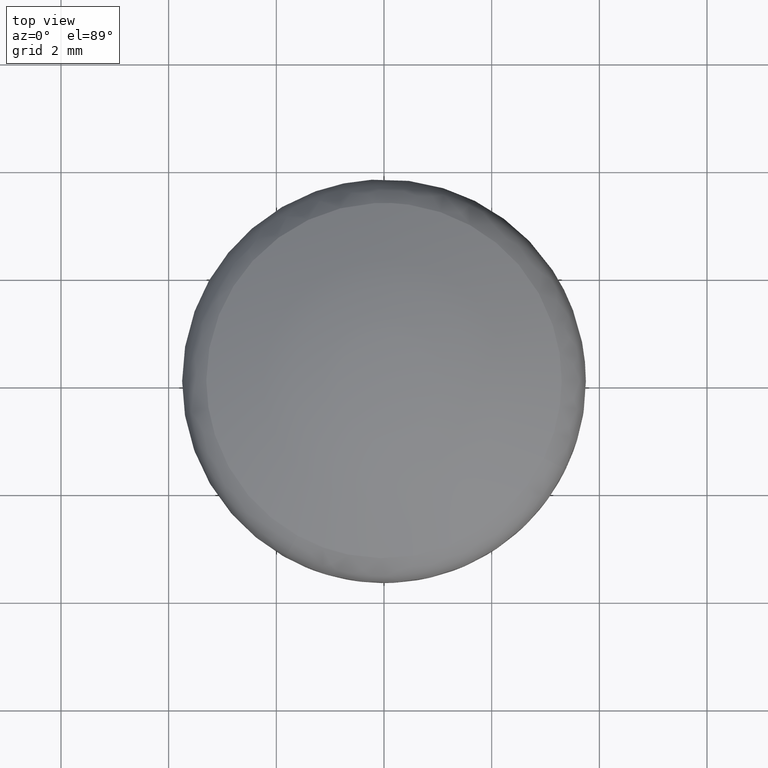
[diagram: clean part render]
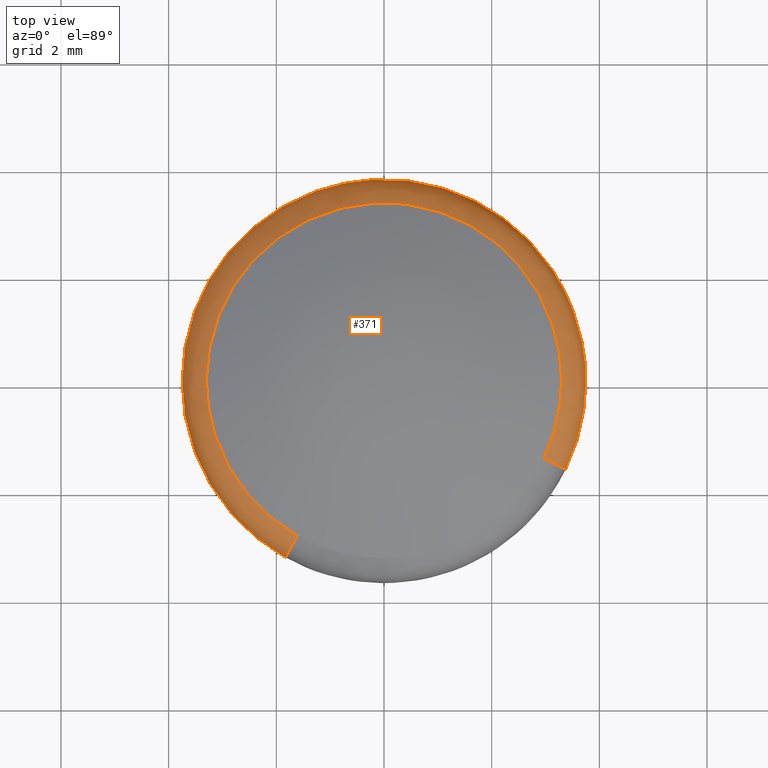
[diagram: same view with one face highlighted and labeled with its STEP entity id]
A machine part, top view. The second image highlights one B-rep face of the part: STEP entity #371.
In plain terms, the highlighted face is a freeform B-spline surface patch.
Its self-contained STEP definition (entity closure, byte-faithful):
#70=CARTESIAN_POINT('',(3.510538469086697,1.318567274378674,0.019141930186875));
#71=VERTEX_POINT('',#70);
#72=CARTESIAN_POINT('',(3.750000000000000,0.0,0.019141930186889));
#73=VERTEX_POINT('',#72);
#74=CARTESIAN_POINT('',(3.510538469086697,1.318567274378674,0.019141930186875));
#75=CARTESIAN_POINT('',(3.750000000000000,0.681027554755463,0.019141930186889));
#76=CARTESIAN_POINT('',(3.750000000000000,0.0,0.019141930186889));
#84=(BOUNDED_CURVE()B_SPLINE_CURVE(2,(#74,#75,#76),.UNSPECIFIED.,.F.,.U.)B_SPLINE_CURVE_WITH_KNOTS((3,3),(0.440284182560188,0.500000000000000),.UNSPECIFIED.)CURVE()GEOMETRIC_REPRESENTATION_ITEM()RATIONAL_B_SPLINE_CURVE((0.893499568906404,0.930038568063908,1.0))REPRESENTATION_ITEM(''));
#85=EDGE_CURVE('',#71,#73,#84,.T.);
#87=CARTESIAN_POINT('',(3.372769693373826,-1.639184124941127,0.019141930189544));
#88=VERTEX_POINT('',#87);
#89=CARTESIAN_POINT('',(3.750000000000000,0.0,0.019141930186889));
#90=CARTESIAN_POINT('',(3.749999999999999,-0.862998627380589,0.019141930186889));
#91=CARTESIAN_POINT('',(3.372769693373826,-1.639184124941127,0.019141930189544));
#99=(BOUNDED_CURVE()B_SPLINE_CURVE(2,(#89,#90,#91),.UNSPECIFIED.,.F.,.U.)B_SPLINE_CURVE_WITH_KNOTS((3,3),(0.500000000000000,0.574283295446778),.UNSPECIFIED.)CURVE()GEOMETRIC_REPRESENTATION_ITEM()RATIONAL_B_SPLINE_CURVE((1.0,0.912971705970091,0.877661399761403))REPRESENTATION_ITEM(''));
#100=EDGE_CURVE('',#73,#88,#99,.T.);
#102=CARTESIAN_POINT('',(-1.829397518922568,-3.273500376929860,0.019141930189478));
#103=VERTEX_POINT('',#102);
#119=CARTESIAN_POINT('',(-3.750000000000000,0.0,0.019141930186889));
#120=VERTEX_POINT('',#119);
#121=CARTESIAN_POINT('',(-1.829397518922568,-3.273500376929860,0.019141930189478));
#122=CARTESIAN_POINT('',(-3.750000000000000,-2.200170604774645,0.019141930186889));
#123=CARTESIAN_POINT('',(-3.750000000000000,0.0,0.019141930186889));
#131=(BOUNDED_CURVE()B_SPLINE_CURVE(2,(#121,#122,#123),.UNSPECIFIED.,.F.,.U.)B_SPLINE_CURVE_WITH_KNOTS((3,3),(0.833121442956414,1.0),.UNSPECIFIED.)CURVE()GEOMETRIC_REPRESENTATION_ITEM()RATIONAL_B_SPLINE_CURVE((0.869991153567505,0.804489609106238,1.0))REPRESENTATION_ITEM(''));
#132=EDGE_CURVE('',#103,#120,#131,.T.);
#134=CARTESIAN_POINT('',(-0.228928960107141,3.743005681429677,0.019141930187192));
#135=VERTEX_POINT('',#134);
#136=CARTESIAN_POINT('',(-3.750000000000000,0.0,0.019141930186889));
#137=CARTESIAN_POINT('',(-3.749999999999999,3.527650643199158,0.019141930186889));
#138=CARTESIAN_POINT('',(-0.228928960107141,3.743005681429677,0.019141930187192));
#146=(BOUNDED_CURVE()B_SPLINE_CURVE(2,(#136,#137,#138),.UNSPECIFIED.,.F.,.U.)B_SPLINE_CURVE_WITH_KNOTS((3,3),(0.0,0.239333103448416),.UNSPECIFIED.)CURVE()GEOMETRIC_REPRESENTATION_ITEM()RATIONAL_B_SPLINE_CURVE((1.0,0.719603827849522,0.976072344305685))REPRESENTATION_ITEM(''));
#147=EDGE_CURVE('',#120,#135,#146,.T.);
#225=CARTESIAN_POINT('',(-0.228928960107141,3.743005681429677,0.019141930187192));
#226=CARTESIAN_POINT('',(-0.114571326501133,3.750000000000000,0.019141930186889));
#227=CARTESIAN_POINT('',(0.0,3.750000000000000,0.019141930186889));
#228=CARTESIAN_POINT('',(2.597286188689057,3.750000000000000,0.019141930186889));
#229=CARTESIAN_POINT('',(3.510538469086697,1.318567274378674,0.019141930186875));
#237=(BOUNDED_CURVE()B_SPLINE_CURVE(2,(#225,#226,#227,#228,#229),.UNSPECIFIED.,.F.,.U.)B_SPLINE_CURVE_WITH_KNOTS((3,2,3),(0.239333103448416,0.250000000000000,0.440284182560188),.UNSPECIFIED.)CURVE()GEOMETRIC_REPRESENTATION_ITEM()RATIONAL_B_SPLINE_CURVE((0.976072344305685,0.987502953337025,1.0,0.777068213122640,0.893499568906404))REPRESENTATION_ITEM(''));
#238=EDGE_CURVE('',#135,#71,#237,.T.);
#260=CARTESIAN_POINT('',(-1.591540023570550,-2.847881235854294,0.755613067348630));
#261=CARTESIAN_POINT('',(-4.280946465078425,-1.344904939855683,0.755613067348630));
#262=CARTESIAN_POINT('',(-2.934243597560148,1.426058095007073,0.755613067348630));
#263=CARTESIAN_POINT('',(-1.508185502553076,4.360301692567220,0.755613067348630));
#264=CARTESIAN_POINT('',(1.426058095007072,2.934243597560148,0.755613067348630));
#265=CARTESIAN_POINT('',(4.360301692567220,1.508185502553076,0.755613067348630));
#266=CARTESIAN_POINT('',(2.934243597560148,-1.426058095007072,0.755613067348630));
#267=CARTESIAN_POINT('',(-1.843238103461677,-3.298266540783274,0.536738466453595));
#268=CARTESIAN_POINT('',(-4.957967456959993,-1.557598297223055,0.536738466453595));
#269=CARTESIAN_POINT('',(-3.398286894304790,1.651585621183399,0.536738466453595));
#270=CARTESIAN_POINT('',(-1.746701273121391,5.049872515488188,0.536738466453595));
#271=CARTESIAN_POINT('',(1.651585621183399,3.398286894304790,0.536738466453595));
#272=CARTESIAN_POINT('',(5.049872515488188,1.746701273121391,0.536738466453595));
#273=CARTESIAN_POINT('',(3.398286894304790,-1.651585621183399,0.536738466453595));
#274=CARTESIAN_POINT('',(-1.828857292459593,-3.272533702649977,-0.022936395006466));
#275=CARTESIAN_POINT('',(-4.919285751748322,-1.545446027428141,-0.022936395006466));
#276=CARTESIAN_POINT('',(-3.371773704573048,1.638700069052401,-0.022936395006466));
#277=CARTESIAN_POINT('',(-1.733073635520647,5.010473773625447,-0.022936395006466));
#278=CARTESIAN_POINT('',(1.638700069052401,3.371773704573048,-0.022936395006466));
#279=CARTESIAN_POINT('',(5.010473773625447,1.733073635520647,-0.022936395006466));
#280=CARTESIAN_POINT('',(3.371773704573048,-1.638700069052400,-0.022936395006466));
#288=(BOUNDED_SURFACE()B_SPLINE_SURFACE(2,2,((#260,#267,#274),(#261,#268,#275),(#262,#269,#276),(#263,#270,#277),(#264,#271,#278),(#265,#272,#279),(#266,#273,#280)),.UNSPECIFIED.,.F.,.F.,.U.)B_SPLINE_SURFACE_WITH_KNOTS((3,2,2,3),(3,3),(0.0,5.962913912030690,12.174282570395990,18.385651228761301),(0.0,1.009375161738740),.UNSPECIFIED.)GEOMETRIC_REPRESENTATION_ITEM()RATIONAL_B_SPLINE_SURFACE(((0.902131284529507,0.737564169422746,0.898971755279689),(0.663394809230379,0.542378088267442,0.661071405375657),(0.922890978033780,0.754536872131904,0.919658742227866),(0.652582468863571,0.533538138939756,0.650296933006815),(0.922890978033780,0.754536872131904,0.919658742227866),(0.652582468863571,0.533538138939756,0.650296933006815),(0.922890978033780,0.754536872131904,0.919658742227866)))REPRESENTATION_ITEM('')SURFACE());
#289=ORIENTED_EDGE('',*,*,#132,.F.);
#290=CARTESIAN_POINT('',(-1.610164110022238,-2.881206936463691,0.738222216056095));
#291=VERTEX_POINT('',#290);
#292=CARTESIAN_POINT('',(-1.610164110022238,-2.881206936463690,0.738222216056095));
#293=CARTESIAN_POINT('',(-1.829397540205401,-3.273500415013608,0.519109695841829));
#294=CARTESIAN_POINT('',(-1.829397518922569,-3.273500376929861,0.019141930189478));
#302=(BOUNDED_CURVE()B_SPLINE_CURVE(2,(#292,#293,#294),.UNSPECIFIED.,.F.,.U.)B_SPLINE_CURVE_WITH_KNOTS((3,3),(-1.658961858099918,-0.354939972348680),.UNSPECIFIED.)CURVE()GEOMETRIC_REPRESENTATION_ITEM()RATIONAL_B_SPLINE_CURVE((0.887856484870809,0.751695468865814,0.884983955398970))REPRESENTATION_ITEM(''));
#303=EDGE_CURVE('',#291,#103,#302,.T.);
#304=ORIENTED_EDGE('',*,*,#303,.F.);
#305=CARTESIAN_POINT('',(-3.300602985438615,0.0,0.738221655529249));
#306=VERTEX_POINT('',#305);
#307=CARTESIAN_POINT('',(-1.610164110022238,-2.881206936463691,0.738222216056095));
#308=CARTESIAN_POINT('',(-3.300602985438614,-1.936503911088885,0.738221655529249));
#309=CARTESIAN_POINT('',(-3.300602985438615,0.0,0.738221655529249));
#317=(BOUNDED_CURVE()B_SPLINE_CURVE(2,(#307,#308,#309),.UNSPECIFIED.,.F.,.U.)B_SPLINE_CURVE_WITH_KNOTS((3,3),(0.833121442956601,1.0),.UNSPECIFIED.)CURVE()GEOMETRIC_REPRESENTATION_ITEM()RATIONAL_B_SPLINE_CURVE((0.869991153567357,0.804489609106459,1.0))REPRESENTATION_ITEM(''));
#318=EDGE_CURVE('',#291,#306,#317,.T.);
#319=ORIENTED_EDGE('',*,*,#318,.T.);
#320=CARTESIAN_POINT('',(3.300602985438615,0.0,0.738221655529249));
#321=VERTEX_POINT('',#320);
#322=CARTESIAN_POINT('',(-3.300602985438615,0.0,0.738221655529249));
#323=CARTESIAN_POINT('',(-3.300602985438615,3.300602985438615,0.738221655529249));
#324=CARTESIAN_POINT('',(0.0,3.300602985438615,0.738221655529249));
#325=CARTESIAN_POINT('',(3.300602985438615,3.300602985438615,0.738221655529249));
#326=CARTESIAN_POINT('',(3.300602985438615,0.0,0.738221655529249));
#334=(BOUNDED_CURVE()B_SPLINE_CURVE(2,(#322,#323,#324,#325,#326),.UNSPECIFIED.,.F.,.U.)B_SPLINE_CURVE_WITH_KNOTS((3,2,3),(0.0,0.250000000000000,0.500000000000000),.UNSPECIFIED.)CURVE()GEOMETRIC_REPRESENTATION_ITEM()RATIONAL_B_SPLINE_CURVE((1.0,0.707106781186548,1.0,0.707106781186548,1.0))REPRESENTATION_ITEM(''));
#335=EDGE_CURVE('',#306,#321,#334,.T.);
#336=ORIENTED_EDGE('',*,*,#335,.T.);
#337=CARTESIAN_POINT('',(2.968579904268314,-1.442745723865238,0.738222216068880));
#338=VERTEX_POINT('',#337);
#339=CARTESIAN_POINT('',(3.300602985438615,0.0,0.738221655529249));
#340=CARTESIAN_POINT('',(3.300602985438615,-0.759577558923570,0.738221655529249));
#341=CARTESIAN_POINT('',(2.968579904268314,-1.442745723865238,0.738222216068880));
#349=(BOUNDED_CURVE()B_SPLINE_CURVE(2,(#339,#340,#341),.UNSPECIFIED.,.F.,.U.)B_SPLINE_CURVE_WITH_KNOTS((3,3),(0.500000000000000,0.574283295446815),.UNSPECIFIED.)CURVE()GEOMETRIC_REPRESENTATION_ITEM()RATIONAL_B_SPLINE_CURVE((1.0,0.912971705970046,0.877661399761368))REPRESENTATION_ITEM(''));
#350=EDGE_CURVE('',#321,#338,#349,.T.);
#351=ORIENTED_EDGE('',*,*,#350,.T.);
#352=CARTESIAN_POINT('',(2.968579904268314,-1.442745723865238,0.738222216068880));
#353=CARTESIAN_POINT('',(3.372769732612330,-1.639184144011091,0.519109695882434));
#354=CARTESIAN_POINT('',(3.372769693373826,-1.639184124941127,0.019141930189544));
#362=(BOUNDED_CURVE()B_SPLINE_CURVE(2,(#352,#353,#354),.UNSPECIFIED.,.F.,.U.)B_SPLINE_CURVE_WITH_KNOTS((3,3),(-1.658961858189783,-0.354939972348882),.UNSPECIFIED.)CURVE()GEOMETRIC_REPRESENTATION_ITEM()RATIONAL_B_SPLINE_CURVE((0.908287689103606,0.768993358653424,0.905349057447087))REPRESENTATION_ITEM(''));
#363=EDGE_CURVE('',#338,#88,#362,.T.);
#364=ORIENTED_EDGE('',*,*,#363,.T.);
#365=ORIENTED_EDGE('',*,*,#100,.F.);
#366=ORIENTED_EDGE('',*,*,#85,.F.);
#367=ORIENTED_EDGE('',*,*,#238,.F.);
#368=ORIENTED_EDGE('',*,*,#147,.F.);
#369=EDGE_LOOP('',(#289,#304,#319,#336,#351,#364,#365,#366,#367,#368));
#370=FACE_OUTER_BOUND('',#369,.T.);
#371=ADVANCED_FACE('',(#370),#288,.T.);